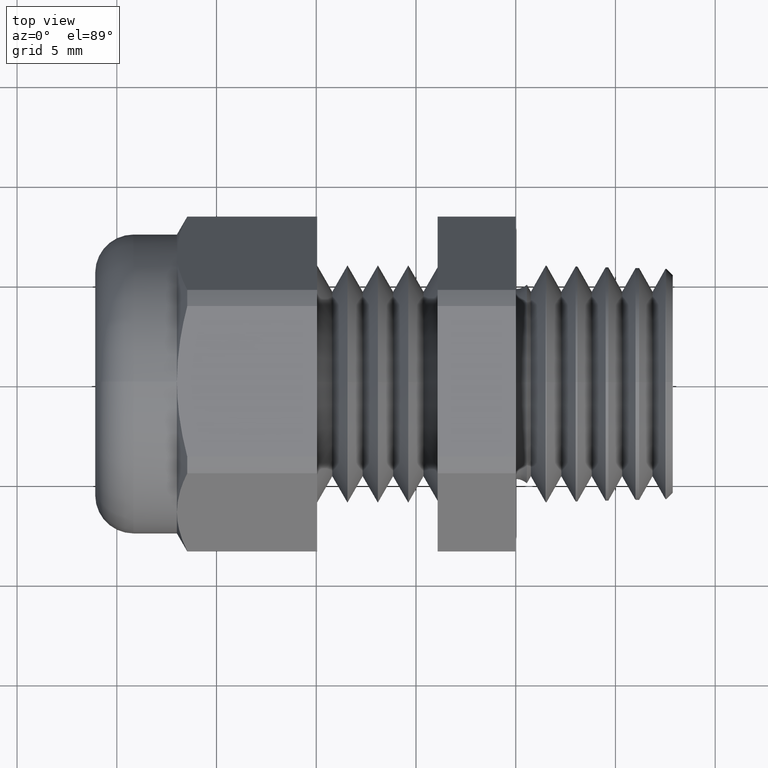
[diagram: clean part render]
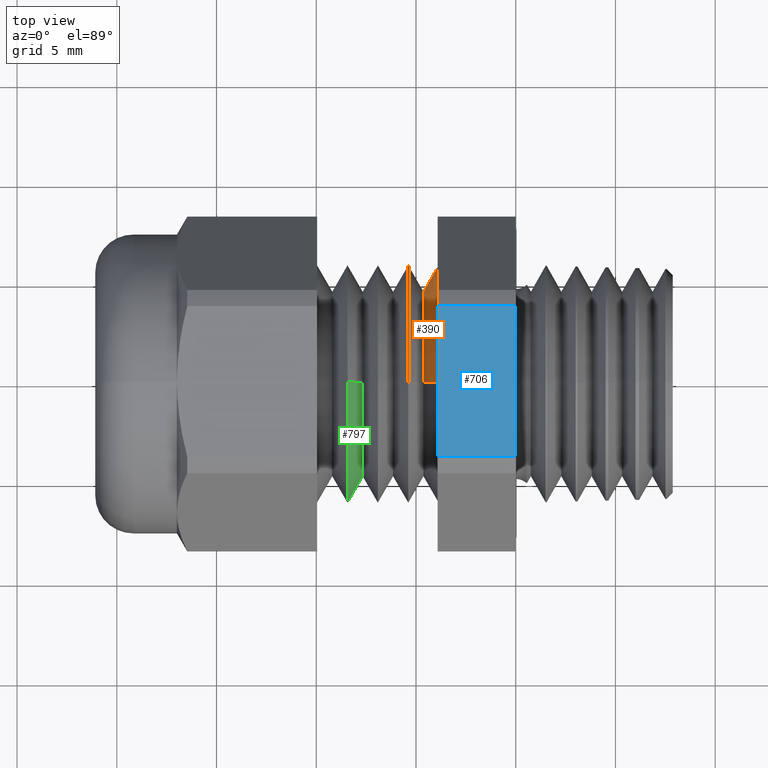
[diagram: same view with three faces highlighted in distinct colors, each labeled with its STEP entity id]
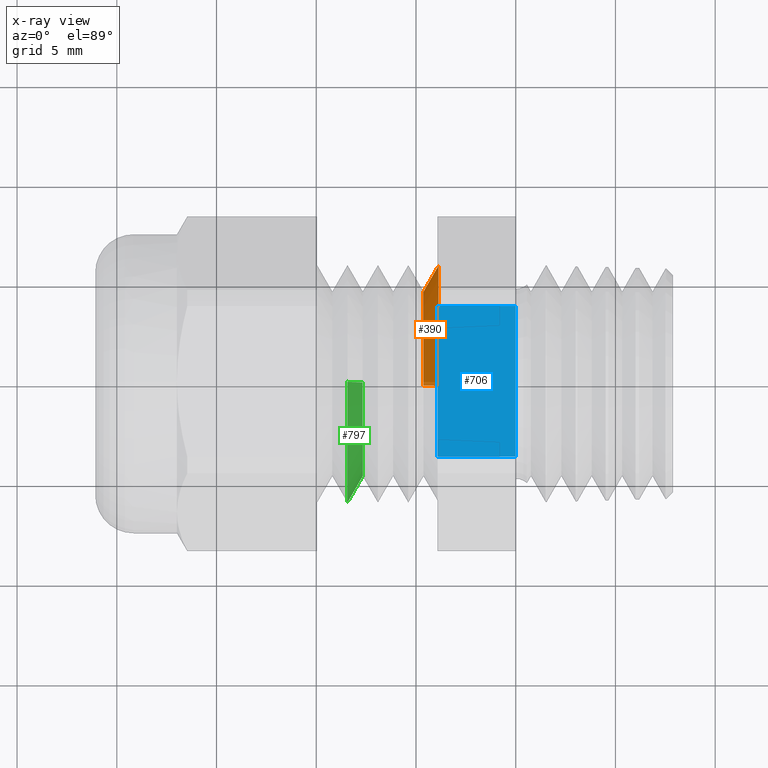
[diagram: x-ray of the same camera — body ghosted, the three highlighted faces saturated]
A machine part, top view with three faces highlighted in distinct colors.
The next image is the same camera in x-ray (body ghosted, the three faces saturated) — at least one of them is partly hidden behind the body in this view.
Their STEP definitions:

[orange] entity #390 — the highlighted conical surface has half-angle 60 deg.
#240 = VERTEX_POINT ( 'NONE', #1311 ) ;
#241 = VERTEX_POINT ( 'NONE', #1310 ) ;
#256 = EDGE_CURVE ( 'NONE', #241, #240, #1348, .T. ) ;
#300 = VERTEX_POINT ( 'NONE', #1453 ) ;
#302 = EDGE_CURVE ( 'NONE', #300, #321, #1452, .T. ) ;
#305 = ORIENTED_EDGE ( 'NONE', *, *, #302, .F. ) ;
#306 = ORIENTED_EDGE ( 'NONE', *, *, #335, .T. ) ;
#321 = VERTEX_POINT ( 'NONE', #1475 ) ;
#335 = EDGE_CURVE ( 'NONE', #240, #321, #1502, .T. ) ;
#383 = EDGE_CURVE ( 'NONE', #241, #300, #1576, .T. ) ;
#388 = ORIENTED_EDGE ( 'NONE', *, *, #383, .F. ) ;
#390 = ADVANCED_FACE ( 'NONE', ( #1566 ), #1625, .T. ) ;
#391 = EDGE_LOOP ( 'NONE', ( #395, #306, #305, #388 ) ) ;
#395 = ORIENTED_EDGE ( 'NONE', *, *, #256, .T. ) ;
#1310 = CARTESIAN_POINT ( 'NONE',  ( -0.1820833473208373400, 0.0000000000000000000, -0.1830384999999998300 ) ) ;
#1311 = CARTESIAN_POINT ( 'NONE',  ( -0.1820833473208373400, 2.559747554726802000E-017, 0.1830384999999998300 ) ) ;
#1344 = DIRECTION ( 'NONE',  ( 0.0000000000000000000, 0.0000000000000000000, -1.000000000000000000 ) ) ;
#1345 = DIRECTION ( 'NONE',  ( 1.000000000000000000, 0.0000000000000000000, 0.0000000000000000000 ) ) ;
#1346 = CARTESIAN_POINT ( 'NONE',  ( -0.1820833473208373400, 0.0000000000000000000, 0.0000000000000000000 ) ) ;
#1347 = AXIS2_PLACEMENT_3D ( 'NONE', #1346, #1345, #1344 ) ;
#1348 = CIRCLE ( 'NONE', #1347, 0.1830384999999998300 ) ;
#1448 = DIRECTION ( 'NONE',  ( 0.0000000000000000000, 0.0000000000000000000, -1.000000000000000000 ) ) ;
#1449 = DIRECTION ( 'NONE',  ( 1.000000000000000000, 0.0000000000000000000, 0.0000000000000000000 ) ) ;
#1450 = CARTESIAN_POINT ( 'NONE',  ( -0.1520833613083403000, 0.0000000000000000000, 0.0000000000000000000 ) ) ;
#1451 = AXIS2_PLACEMENT_3D ( 'NONE', #1450, #1449, #1448 ) ;
#1452 = CIRCLE ( 'NONE', #1451, 0.2349999999999998200 ) ;
#1453 = CARTESIAN_POINT ( 'NONE',  ( -0.1520833613083403000, 0.0000000000000000000, -0.2349999999999998200 ) ) ;
#1475 = CARTESIAN_POINT ( 'NONE',  ( -0.1520833613083403000, 2.877919977996278000E-017, 0.2349999999999998200 ) ) ;
#1499 = DIRECTION ( 'NONE',  ( 0.5000000000000037700, 1.060575238724904300E-016, 0.8660254037844364900 ) ) ;
#1500 = VECTOR ( 'NONE', #1499, 39.37007874015748100 ) ;
#1501 = CARTESIAN_POINT ( 'NONE',  ( -0.1820833473208373400, 2.241575131457326000E-017, 0.1830384999999998300 ) ) ;
#1502 = LINE ( 'NONE', #1501, #1500 ) ;
#1565 = CARTESIAN_POINT ( 'NONE',  ( -0.1820833473208373400, 0.0000000000000000000, 0.0000000000000000000 ) ) ;
#1566 = FACE_OUTER_BOUND ( 'NONE', #391, .T. ) ;
#1573 = DIRECTION ( 'NONE',  ( 0.5000000000000037700, 0.0000000000000000000, -0.8660254037844364900 ) ) ;
#1574 = VECTOR ( 'NONE', #1573, 39.37007874015748100 ) ;
#1575 = CARTESIAN_POINT ( 'NONE',  ( -0.1820833473208373400, 0.0000000000000000000, -0.1830384999999998300 ) ) ;
#1576 = LINE ( 'NONE', #1575, #1574 ) ;
#1622 = DIRECTION ( 'NONE',  ( 0.0000000000000000000, 0.0000000000000000000, -1.000000000000000000 ) ) ;
#1623 = DIRECTION ( 'NONE',  ( 1.000000000000000000, 0.0000000000000000000, 0.0000000000000000000 ) ) ;
#1624 = AXIS2_PLACEMENT_3D ( 'NONE', #1565, #1623, #1622 ) ;
#1625 = CONICAL_SURFACE ( 'NONE', #1624, 0.1830384999999998300, 1.047197551196593400 ) ;

[blue] entity #706 — the highlighted planar face has unit normal (0, 0, 1).
#187 = VERTEX_POINT ( 'NONE', #1218 ) ;
#193 = VERTEX_POINT ( 'NONE', #1211 ) ;
#195 = EDGE_CURVE ( 'NONE', #187, #193, #1210, .T. ) ;
#242 = ORIENTED_EDGE ( 'NONE', *, *, #195, .T. ) ;
#248 = EDGE_LOOP ( 'NONE', ( #242, #2968, #2934, #688 ) ) ;
#258 = EDGE_CURVE ( 'NONE', #193, #288, #1343, .T. ) ;
#261 = VERTEX_POINT ( 'NONE', #1338 ) ;
#267 = EDGE_CURVE ( 'NONE', #187, #261, #1385, .T. ) ;
#288 = VERTEX_POINT ( 'NONE', #1412 ) ;
#688 = ORIENTED_EDGE ( 'NONE', *, *, #267, .F. ) ;
#706 = ADVANCED_FACE ( 'NONE', ( #2109 ), #2108, .T. ) ;
#1207 = DIRECTION ( 'NONE',  ( 0.0000000000000000000, -1.000000000000000000, 0.0000000000000000000 ) ) ;
#1208 = VECTOR ( 'NONE', #1207, 39.37007874015748100 ) ;
#1209 = CARTESIAN_POINT ( 'NONE',  ( -0.1542288557213930500, 0.2349999999999998200, 0.2949999999999994300 ) ) ;
#1210 = LINE ( 'NONE', #1209, #1208 ) ;
#1211 = CARTESIAN_POINT ( 'NONE',  ( -0.1542288557213930500, -0.1487923385124393900, 0.2949999999999994300 ) ) ;
#1218 = CARTESIAN_POINT ( 'NONE',  ( -0.1542288557213930500, 0.1487923385124394500, 0.2949999999999994800 ) ) ;
#1338 = CARTESIAN_POINT ( 'NONE',  ( 0.0000000000000000000, 0.1487923385124394500, 0.2949999999999994800 ) ) ;
#1340 = DIRECTION ( 'NONE',  ( 1.000000000000000000, 0.0000000000000000000, 0.0000000000000000000 ) ) ;
#1341 = VECTOR ( 'NONE', #1340, 39.37007874015748100 ) ;
#1342 = CARTESIAN_POINT ( 'NONE',  ( -1.612607445236302800, -0.1487923385124393900, 0.2949999999999994300 ) ) ;
#1343 = LINE ( 'NONE', #1342, #1341 ) ;
#1382 = DIRECTION ( 'NONE',  ( 1.000000000000000000, 0.0000000000000000000, 0.0000000000000000000 ) ) ;
#1383 = VECTOR ( 'NONE', #1382, 39.37007874015748100 ) ;
#1384 = CARTESIAN_POINT ( 'NONE',  ( -1.612607445236302800, 0.1487923385124394500, 0.2949999999999994800 ) ) ;
#1385 = LINE ( 'NONE', #1384, #1383 ) ;
#1412 = CARTESIAN_POINT ( 'NONE',  ( 1.365923996832131600E-016, -0.1487923385124394200, 0.2949999999999995400 ) ) ;
#2104 = DIRECTION ( 'NONE',  ( 1.000000000000000000, 0.0000000000000000000, 0.0000000000000000000 ) ) ;
#2105 = DIRECTION ( 'NONE',  ( 0.0000000000000000000, 0.0000000000000000000, 1.000000000000000000 ) ) ;
#2106 = CARTESIAN_POINT ( 'NONE',  ( -1.612607445236302800, 0.1487923385124393900, 0.2949999999999994300 ) ) ;
#2107 = AXIS2_PLACEMENT_3D ( 'NONE', #2106, #2105, #2104 ) ;
#2108 = PLANE ( 'NONE',  #2107 ) ;
#2109 = FACE_OUTER_BOUND ( 'NONE', #248, .T. ) ;
#2720 = DIRECTION ( 'NONE',  ( 0.0000000000000000000, -1.000000000000000000, 0.0000000000000000000 ) ) ;
#2721 = VECTOR ( 'NONE', #2720, 39.37007874015748100 ) ;
#2722 = CARTESIAN_POINT ( 'NONE',  ( 0.0000000000000000000, 0.1487923385124393900, 0.2949999999999994300 ) ) ;
#2723 = LINE ( 'NONE', #2722, #2721 ) ;
#2934 = ORIENTED_EDGE ( 'NONE', *, *, #3039, .F. ) ;
#2968 = ORIENTED_EDGE ( 'NONE', *, *, #258, .T. ) ;
#3039 = EDGE_CURVE ( 'NONE', #261, #288, #2723, .T. ) ;

[green] entity #797 — the highlighted conical surface has half-angle 60 deg.
#56 = VERTEX_POINT ( 'NONE', #966 ) ;
#58 = VERTEX_POINT ( 'NONE', #960 ) ;
#59 = EDGE_CURVE ( 'NONE', #3041, #56, #959, .T. ) ;
#752 = EDGE_CURVE ( 'NONE', #56, #58, #2170, .T. ) ;
#797 = ADVANCED_FACE ( 'NONE', ( #2294 ), #2287, .T. ) ;
#798 = ORIENTED_EDGE ( 'NONE', *, *, #3042, .F. ) ;
#799 = ORIENTED_EDGE ( 'NONE', *, *, #816, .F. ) ;
#800 = ORIENTED_EDGE ( 'NONE', *, *, #59, .T. ) ;
#801 = ORIENTED_EDGE ( 'NONE', *, *, #752, .T. ) ;
#816 = EDGE_CURVE ( 'NONE', #3041, #3043, #2271, .T. ) ;
#819 = EDGE_LOOP ( 'NONE', ( #798, #799, #800, #801 ) ) ;
#956 = DIRECTION ( 'NONE',  ( -0.4999999999999935100, 0.0000000000000000000, 0.8660254037844422600 ) ) ;
#957 = VECTOR ( 'NONE', #956, 39.37007874015748900 ) ;
#958 = CARTESIAN_POINT ( 'NONE',  ( -0.3320833333333335600, 0.0000000000000000000, 0.2349999999999998200 ) ) ;
#959 = LINE ( 'NONE', #958, #957 ) ;
#960 = CARTESIAN_POINT ( 'NONE',  ( -0.3320833333333335600, 0.0000000000000000000, -0.2349999999999998200 ) ) ;
#966 = CARTESIAN_POINT ( 'NONE',  ( -0.3320833333333335600, 2.877919977996278600E-017, 0.2349999999999998200 ) ) ;
#2166 = DIRECTION ( 'NONE',  ( 0.0000000000000000000, 0.0000000000000000000, -1.000000000000000000 ) ) ;
#2167 = DIRECTION ( 'NONE',  ( 1.000000000000000000, 0.0000000000000000000, 0.0000000000000000000 ) ) ;
#2168 = CARTESIAN_POINT ( 'NONE',  ( -0.3320833333333335600, 0.0000000000000000000, 0.0000000000000000000 ) ) ;
#2169 = AXIS2_PLACEMENT_3D ( 'NONE', #2168, #2167, #2166 ) ;
#2170 = CIRCLE ( 'NONE', #2169, 0.2349999999999998200 ) ;
#2263 = DIRECTION ( 'NONE',  ( 0.0000000000000000000, 0.0000000000000000000, -1.000000000000000000 ) ) ;
#2264 = DIRECTION ( 'NONE',  ( 1.000000000000000000, 0.0000000000000000000, 0.0000000000000000000 ) ) ;
#2265 = CARTESIAN_POINT ( 'NONE',  ( -0.3020833473208373000, 0.0000000000000000000, 0.0000000000000000000 ) ) ;
#2266 = AXIS2_PLACEMENT_3D ( 'NONE', #2265, #2264, #2263 ) ;
#2271 = CIRCLE ( 'NONE', #2266, 0.1830384999999998300 ) ;
#2284 = DIRECTION ( 'NONE',  ( 0.0000000000000000000, 0.0000000000000000000, 1.000000000000000000 ) ) ;
#2285 = DIRECTION ( 'NONE',  ( -1.000000000000000000, 0.0000000000000000000, 0.0000000000000000000 ) ) ;
#2286 = AXIS2_PLACEMENT_3D ( 'NONE', #2289, #2285, #2284 ) ;
#2287 = CONICAL_SURFACE ( 'NONE', #2286, 0.2349999999999998200, 1.047197551196605200 ) ;
#2289 = CARTESIAN_POINT ( 'NONE',  ( -0.3320833333333335600, 0.0000000000000000000, 0.0000000000000000000 ) ) ;
#2294 = FACE_OUTER_BOUND ( 'NONE', #819, .T. ) ;
#2714 = CARTESIAN_POINT ( 'NONE',  ( -0.3020833473208373000, 0.0000000000000000000, -0.1830384999999998300 ) ) ;
#2715 = DIRECTION ( 'NONE',  ( -0.4999999999999935100, 1.060575238724911400E-016, -0.8660254037844422600 ) ) ;
#2716 = VECTOR ( 'NONE', #2715, 39.37007874015748900 ) ;
#2717 = CARTESIAN_POINT ( 'NONE',  ( -0.3320833333333335600, 2.877919977996278000E-017, -0.2349999999999998200 ) ) ;
#2718 = LINE ( 'NONE', #2717, #2716 ) ;
#2719 = CARTESIAN_POINT ( 'NONE',  ( -0.3020833473208373000, 2.559747554726802000E-017, 0.1830384999999998300 ) ) ;
#3041 = VERTEX_POINT ( 'NONE', #2719 ) ;
#3042 = EDGE_CURVE ( 'NONE', #3043, #58, #2718, .T. ) ;
#3043 = VERTEX_POINT ( 'NONE', #2714 ) ;